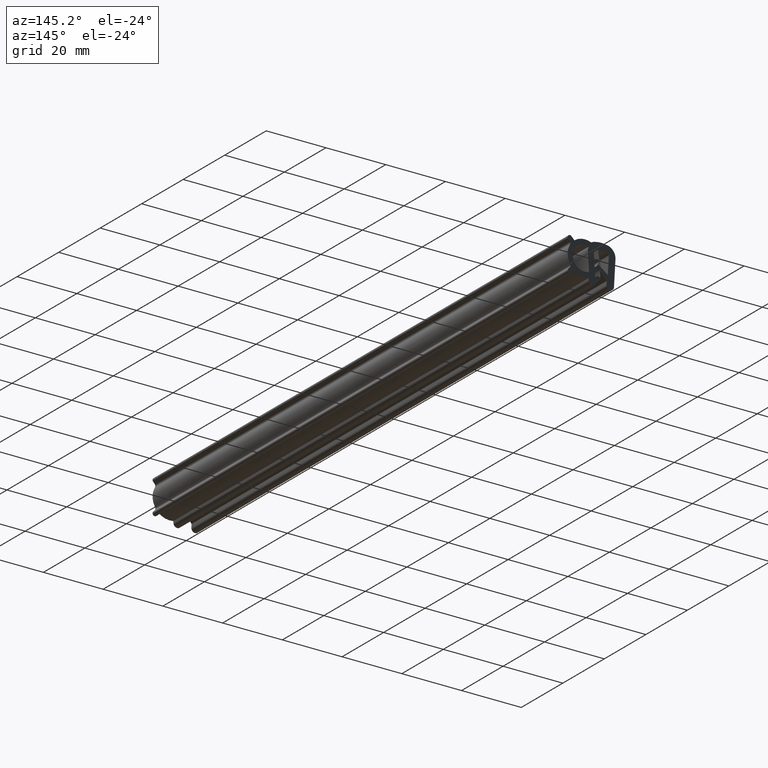
[diagram: clean part render]
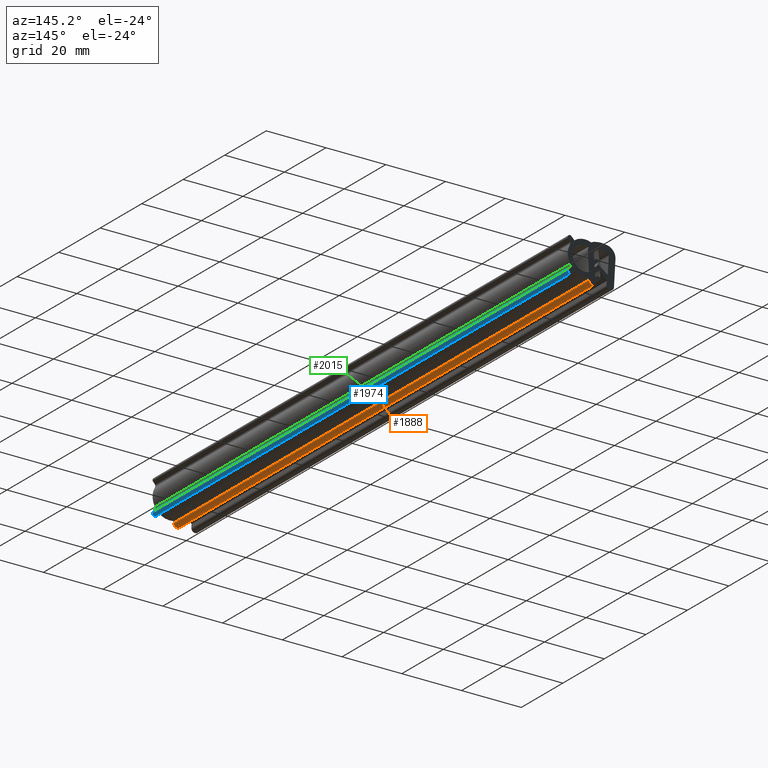
[diagram: same view with three faces highlighted in distinct colors, each labeled with its STEP entity id]
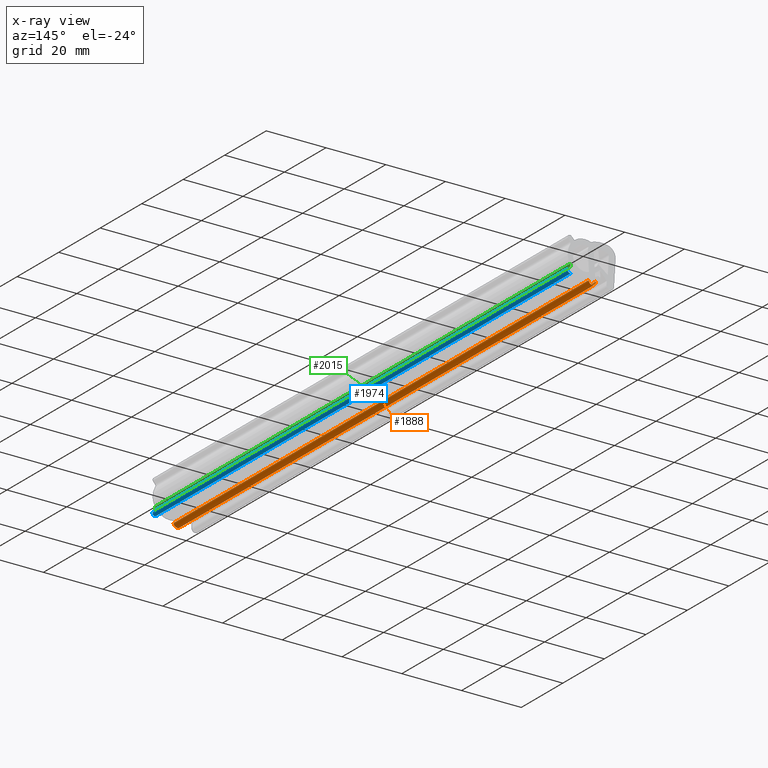
[diagram: x-ray of the same camera — body ghosted, the three highlighted faces saturated]
A machine part, auxiliary view with three faces highlighted in distinct colors.
The next image is the same camera in x-ray (body ghosted, the three faces saturated) — at least one of them is partly hidden behind the body in this view.
Their STEP definitions:

[orange] entity #1888 — the highlighted face is a freeform B-spline surface patch.
#382=CARTESIAN_POINT('',(1.758481051303430,0.0,-12.091179514985919));
#383=VERTEX_POINT('',#382);
#389=CARTESIAN_POINT('',(4.246288446912440,0.0,-12.321768259748900));
#390=VERTEX_POINT('',#389);
#391=CARTESIAN_POINT('',(1.758481051303433,0.0,-12.091179514985919));
#392=CARTESIAN_POINT('',(1.664300219392735,0.0,-12.826424270559301));
#393=CARTESIAN_POINT('',(2.264263377013814,0.0,-13.261739201609100));
#394=CARTESIAN_POINT('',(2.864226534634893,0.0,-13.697054132658911));
#395=CARTESIAN_POINT('',(3.533978137523753,0.0,-13.379425937869220));
#396=CARTESIAN_POINT('',(4.203729740412613,0.0,-13.061797743079540));
#397=CARTESIAN_POINT('',(4.246288446912440,0.0,-12.321768259748900));
#405=(BOUNDED_CURVE()B_SPLINE_CURVE(2,(#391,#392,#393,#394,#395,#396,#397),.UNSPECIFIED.,.F.,.U.)B_SPLINE_CURVE_WITH_KNOTS((3,2,2,3),(0.0,0.333333333333333,0.666666666666667,1.0),.UNSPECIFIED.)CURVE()GEOMETRIC_REPRESENTATION_ITEM()RATIONAL_B_SPLINE_CURVE((1.0,0.860137129444063,1.0,0.860137129444063,1.0,0.860137129444063,1.0))REPRESENTATION_ITEM(''));
#406=EDGE_CURVE('',#383,#390,#405,.T.);
#932=CARTESIAN_POINT('',(4.246288446912440,200.0,-12.321768259748900));
#933=VERTEX_POINT('',#932);
#939=CARTESIAN_POINT('',(1.758481051303430,200.0,-12.091179514985919));
#940=VERTEX_POINT('',#939);
#941=CARTESIAN_POINT('',(1.758481051303433,200.0,-12.091179514985919));
#942=CARTESIAN_POINT('',(1.664300219392735,199.999999999999910,-12.826424270559301));
#943=CARTESIAN_POINT('',(2.264263377013814,200.0,-13.261739201609100));
#944=CARTESIAN_POINT('',(2.864226534634893,199.999999999999910,-13.697054132658911));
#945=CARTESIAN_POINT('',(3.533978137523753,200.0,-13.379425937869220));
#946=CARTESIAN_POINT('',(4.203729740412613,199.999999999999910,-13.061797743079540));
#947=CARTESIAN_POINT('',(4.246288446912509,200.0,-12.321768259748900));
#955=(BOUNDED_CURVE()B_SPLINE_CURVE(2,(#941,#942,#943,#944,#945,#946,#947),.UNSPECIFIED.,.F.,.U.)B_SPLINE_CURVE_WITH_KNOTS((3,2,2,3),(0.0,0.333333333333333,0.666666666666667,1.0),.UNSPECIFIED.)CURVE()GEOMETRIC_REPRESENTATION_ITEM()RATIONAL_B_SPLINE_CURVE((1.0,0.860137129444063,1.0,0.860137129444063,1.0,0.860137129444063,1.0))REPRESENTATION_ITEM(''));
#956=EDGE_CURVE('',#940,#933,#955,.T.);
#1852=CARTESIAN_POINT('',(1.758481051303430,200.0,-12.091179514985919));
#1853=CARTESIAN_POINT('',(1.758481051303430,0.0,-12.091179514985919));
#1854=QUASI_UNIFORM_CURVE('',1,(#1852,#1853),.UNSPECIFIED.,.F.,.U.);
#1855=EDGE_CURVE('',#940,#383,#1854,.T.);
#1860=CARTESIAN_POINT('',(4.247739483744509,205.0,-12.289076457359069));
#1861=CARTESIAN_POINT('',(4.247739483744509,-5.125000000000000,-12.289076457359069));
#1862=CARTESIAN_POINT('',(4.205466810332849,205.000000000000060,-13.640657930956110));
#1863=CARTESIAN_POINT('',(4.205466810332849,-5.124999999999999,-13.640657930956110));
#1864=CARTESIAN_POINT('',(2.861368487081277,205.0,-13.492471709867850));
#1865=CARTESIAN_POINT('',(2.861368487081277,-5.125000000000000,-13.492471709867850));
#1866=CARTESIAN_POINT('',(1.517270163829708,205.000000000000060,-13.344285488779601));
#1867=CARTESIAN_POINT('',(1.517270163829708,-5.124999999999999,-13.344285488779601));
#1868=CARTESIAN_POINT('',(1.770456315264628,205.0,-12.015957128994391));
#1869=CARTESIAN_POINT('',(1.770456315264628,-5.125000000000000,-12.015957128994391));
#1877=(BOUNDED_SURFACE()B_SPLINE_SURFACE(1,2,((#1860,#1862,#1864,#1866,#1868),(#1861,#1863,#1865,#1867,#1869)),.UNSPECIFIED.,.F.,.F.,.U.)B_SPLINE_SURFACE_WITH_KNOTS((2,2),(3,2,3),(0.0,210.125000000000000),(0.0,2.187044863393214,4.374089726786427),.UNSPECIFIED.)GEOMETRIC_REPRESENTATION_ITEM()RATIONAL_B_SPLINE_SURFACE(((1.0,0.678800745532942,1.0,0.678800745532942,1.0),(1.0,0.678800745532942,1.0,0.678800745532942,1.0)))REPRESENTATION_ITEM('')SURFACE());
#1878=ORIENTED_EDGE('',*,*,#406,.F.);
#1879=ORIENTED_EDGE('',*,*,#1855,.F.);
#1880=ORIENTED_EDGE('',*,*,#956,.T.);
#1881=CARTESIAN_POINT('',(4.246288446912440,200.0,-12.321768259748900));
#1882=CARTESIAN_POINT('',(4.246288446912440,0.0,-12.321768259748900));
#1883=QUASI_UNIFORM_CURVE('',1,(#1881,#1882),.UNSPECIFIED.,.F.,.U.);
#1884=EDGE_CURVE('',#933,#390,#1883,.T.);
#1885=ORIENTED_EDGE('',*,*,#1884,.T.);
#1886=EDGE_LOOP('',(#1878,#1879,#1880,#1885));
#1887=FACE_OUTER_BOUND('',#1886,.T.);
#1888=ADVANCED_FACE('',(#1887),#1877,.T.);

[blue] entity #1974 — the highlighted face is a freeform B-spline surface patch.
#430=CARTESIAN_POINT('',(9.969669914112139,0.0,-11.626330085892739));
#431=VERTEX_POINT('',#430);
#437=CARTESIAN_POINT('',(11.030330085887661,0.0,-10.565669914108240));
#438=VERTEX_POINT('',#437);
#439=CARTESIAN_POINT('',(9.969669914112124,0.0,-11.626330085892750));
#440=CARTESIAN_POINT('',(10.500000000004505,0.0,-12.156660171780613));
#441=CARTESIAN_POINT('',(11.030330085892381,0.0,-11.626330085888251));
#442=CARTESIAN_POINT('',(11.560660171780254,0.0,-11.095999999995884));
#443=CARTESIAN_POINT('',(11.030330085887661,0.0,-10.565669914108240));
#451=(BOUNDED_CURVE()B_SPLINE_CURVE(2,(#439,#440,#441,#442,#443),.UNSPECIFIED.,.F.,.U.)B_SPLINE_CURVE_WITH_KNOTS((3,2,3),(0.0,0.500000000000000,1.0),.UNSPECIFIED.)CURVE()GEOMETRIC_REPRESENTATION_ITEM()RATIONAL_B_SPLINE_CURVE((1.0,0.707106781186557,1.0,0.707106781186557,1.0))REPRESENTATION_ITEM(''));
#452=EDGE_CURVE('',#431,#438,#451,.T.);
#886=CARTESIAN_POINT('',(11.030330085887661,200.0,-10.565669914108240));
#887=VERTEX_POINT('',#886);
#893=CARTESIAN_POINT('',(9.969669914112139,200.0,-11.626330085892739));
#894=VERTEX_POINT('',#893);
#895=CARTESIAN_POINT('',(9.969669914112124,200.0,-11.626330085892750));
#896=CARTESIAN_POINT('',(10.500000000004505,199.999999999999940,-12.156660171780613));
#897=CARTESIAN_POINT('',(11.030330085892381,200.0,-11.626330085888251));
#898=CARTESIAN_POINT('',(11.560660171780254,199.999999999999940,-11.095999999995884));
#899=CARTESIAN_POINT('',(11.030330085887901,200.0,-10.565669914108000));
#907=(BOUNDED_CURVE()B_SPLINE_CURVE(2,(#895,#896,#897,#898,#899),.UNSPECIFIED.,.F.,.U.)B_SPLINE_CURVE_WITH_KNOTS((3,2,3),(0.0,0.500000000000000,1.0),.UNSPECIFIED.)CURVE()GEOMETRIC_REPRESENTATION_ITEM()RATIONAL_B_SPLINE_CURVE((1.0,0.707106781186557,1.0,0.707106781186557,1.0))REPRESENTATION_ITEM(''));
#908=EDGE_CURVE('',#894,#887,#907,.T.);
#1938=CARTESIAN_POINT('',(9.969669914112139,200.0,-11.626330085892739));
#1939=CARTESIAN_POINT('',(9.969669914112139,0.0,-11.626330085892739));
#1940=QUASI_UNIFORM_CURVE('',1,(#1938,#1939),.UNSPECIFIED.,.F.,.U.);
#1941=EDGE_CURVE('',#894,#431,#1940,.T.);
#1946=CARTESIAN_POINT('',(11.025681948222861,205.0,-10.561062163132290));
#1947=CARTESIAN_POINT('',(11.025681948222861,-5.125000000000000,-10.561062163132290));
#1948=CARTESIAN_POINT('',(11.579626294293302,205.000000000000030,-11.105421755929546));
#1949=CARTESIAN_POINT('',(11.579626294293302,-5.125000000000000,-11.105421755929546));
#1950=CARTESIAN_POINT('',(11.016265931772820,205.0,-11.640030778257641));
#1951=CARTESIAN_POINT('',(11.016265931772820,-5.125000000000000,-11.640030778257641));
#1952=CARTESIAN_POINT('',(10.452905569252334,205.000000000000030,-12.174639800585727));
#1953=CARTESIAN_POINT('',(10.452905569252334,-5.125000000000000,-12.174639800585727));
#1954=CARTESIAN_POINT('',(9.938283209410098,205.0,-11.592965036164740));
#1955=CARTESIAN_POINT('',(9.938283209410098,-5.125000000000000,-11.592965036164740));
#1963=(BOUNDED_SURFACE()B_SPLINE_SURFACE(1,2,((#1946,#1948,#1950,#1952,#1954),(#1947,#1949,#1951,#1953,#1955)),.UNSPECIFIED.,.F.,.F.,.U.)B_SPLINE_SURFACE_WITH_KNOTS((2,2),(3,2,3),(0.0,210.125000000000000),(0.0,1.0,2.0),.UNSPECIFIED.)GEOMETRIC_REPRESENTATION_ITEM()RATIONAL_B_SPLINE_SURFACE(((1.0,0.694658370458997,1.0,0.694658370458997,1.0),(1.0,0.694658370458997,1.0,0.694658370458997,1.0)))REPRESENTATION_ITEM('')SURFACE());
#1964=ORIENTED_EDGE('',*,*,#452,.F.);
#1965=ORIENTED_EDGE('',*,*,#1941,.F.);
#1966=ORIENTED_EDGE('',*,*,#908,.T.);
#1967=CARTESIAN_POINT('',(11.030330085887661,200.0,-10.565669914108240));
#1968=CARTESIAN_POINT('',(11.030330085887661,0.0,-10.565669914108240));
#1969=QUASI_UNIFORM_CURVE('',1,(#1967,#1968),.UNSPECIFIED.,.F.,.U.);
#1970=EDGE_CURVE('',#887,#438,#1969,.T.);
#1971=ORIENTED_EDGE('',*,*,#1970,.T.);
#1972=EDGE_LOOP('',(#1964,#1965,#1966,#1971));
#1973=FACE_OUTER_BOUND('',#1972,.T.);
#1974=ADVANCED_FACE('',(#1973),#1963,.T.);

[green] entity #2015 — the highlighted face is a freeform B-spline surface patch.
#454=CARTESIAN_POINT('',(10.612905780844301,0.0,-10.148245609068139));
#455=VERTEX_POINT('',#454);
#461=CARTESIAN_POINT('',(10.464444637300820,0.0,-8.997170371438761));
#462=VERTEX_POINT('',#461);
#463=CARTESIAN_POINT('',(10.464444637300820,0.0,-8.997170371438761));
#464=CARTESIAN_POINT('',(10.094638292012743,0.0,-9.629978120239034));
#465=CARTESIAN_POINT('',(10.612905780844290,0.0,-10.148245609068150));
#473=(BOUNDED_CURVE()B_SPLINE_CURVE(2,(#463,#464,#465),.UNSPECIFIED.,.F.,.U.)CURVE()GEOMETRIC_REPRESENTATION_ITEM()QUASI_UNIFORM_CURVE()RATIONAL_B_SPLINE_CURVE((1.0,0.791748490415493,1.0))REPRESENTATION_ITEM(''));
#474=EDGE_CURVE('',#462,#455,#473,.T.);
#856=CARTESIAN_POINT('',(10.464444637300820,200.0,-8.997170371438761));
#857=VERTEX_POINT('',#856);
#871=CARTESIAN_POINT('',(10.612905780844301,200.0,-10.148245609068139));
#872=VERTEX_POINT('',#871);
#873=CARTESIAN_POINT('',(10.464444637300820,200.0,-8.997170371438761));
#874=CARTESIAN_POINT('',(10.094638292012743,199.999999999999970,-9.629978120239034));
#875=CARTESIAN_POINT('',(10.612905780844290,200.0,-10.148245609068150));
#883=(BOUNDED_CURVE()B_SPLINE_CURVE(2,(#873,#874,#875),.UNSPECIFIED.,.F.,.U.)CURVE()GEOMETRIC_REPRESENTATION_ITEM()QUASI_UNIFORM_CURVE()RATIONAL_B_SPLINE_CURVE((1.0,0.791748490415493,1.0))REPRESENTATION_ITEM(''));
#884=EDGE_CURVE('',#857,#872,#883,.T.);
#1983=CARTESIAN_POINT('',(10.612905780844301,200.0,-10.148245609068139));
#1984=CARTESIAN_POINT('',(10.612905780844301,0.0,-10.148245609068139));
#1985=QUASI_UNIFORM_CURVE('',1,(#1983,#1984),.UNSPECIFIED.,.F.,.U.);
#1986=EDGE_CURVE('',#872,#455,#1985,.T.);
#1991=CARTESIAN_POINT('',(10.639168815132029,205.0,-10.173519787233831));
#1992=CARTESIAN_POINT('',(10.639168815132029,-5.125000000000000,-10.173519787233831));
#1993=CARTESIAN_POINT('',(10.044020460528591,205.0,-9.622375966038234));
#1994=CARTESIAN_POINT('',(10.044020460528591,-5.124999999999999,-9.622375966038234));
#1995=CARTESIAN_POINT('',(10.495089421345110,205.000000000000030,-8.948211395464277));
#1996=CARTESIAN_POINT('',(10.495089421345110,-5.125000000000000,-8.948211395464277));
#2004=(BOUNDED_SURFACE()B_SPLINE_SURFACE(1,2,((#1991,#1993,#1995),(#1992,#1994,#1996)),.UNSPECIFIED.,.F.,.F.,.U.)B_SPLINE_SURFACE_WITH_KNOTS((2,2),(3,3),(0.0,210.125000000000000),(0.0,0.986530523684435),.UNSPECIFIED.)GEOMETRIC_REPRESENTATION_ITEM()RATIONAL_B_SPLINE_SURFACE(((1.0,0.758013513722397,0.993481137508794),(1.0,0.758013513722397,0.993481137508794)))REPRESENTATION_ITEM('')SURFACE());
#2005=ORIENTED_EDGE('',*,*,#474,.T.);
#2006=ORIENTED_EDGE('',*,*,#1986,.F.);
#2007=ORIENTED_EDGE('',*,*,#884,.F.);
#2008=CARTESIAN_POINT('',(10.464444637300820,200.0,-8.997170371438761));
#2009=CARTESIAN_POINT('',(10.464444637300820,0.0,-8.997170371438761));
#2010=QUASI_UNIFORM_CURVE('',1,(#2008,#2009),.UNSPECIFIED.,.F.,.U.);
#2011=EDGE_CURVE('',#857,#462,#2010,.T.);
#2012=ORIENTED_EDGE('',*,*,#2011,.T.);
#2013=EDGE_LOOP('',(#2005,#2006,#2007,#2012));
#2014=FACE_OUTER_BOUND('',#2013,.T.);
#2015=ADVANCED_FACE('',(#2014),#2004,.F.);